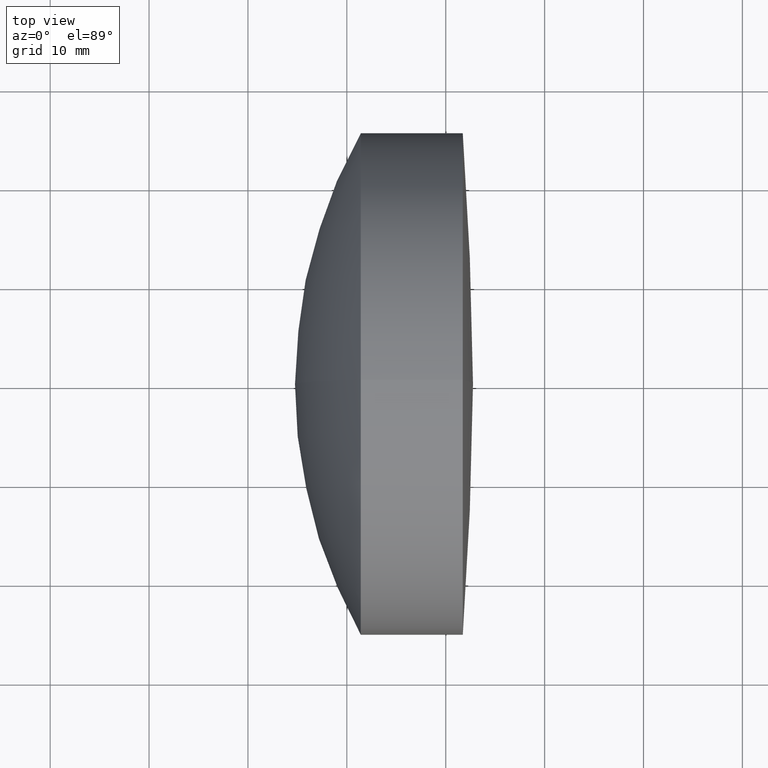
[diagram: clean part render]
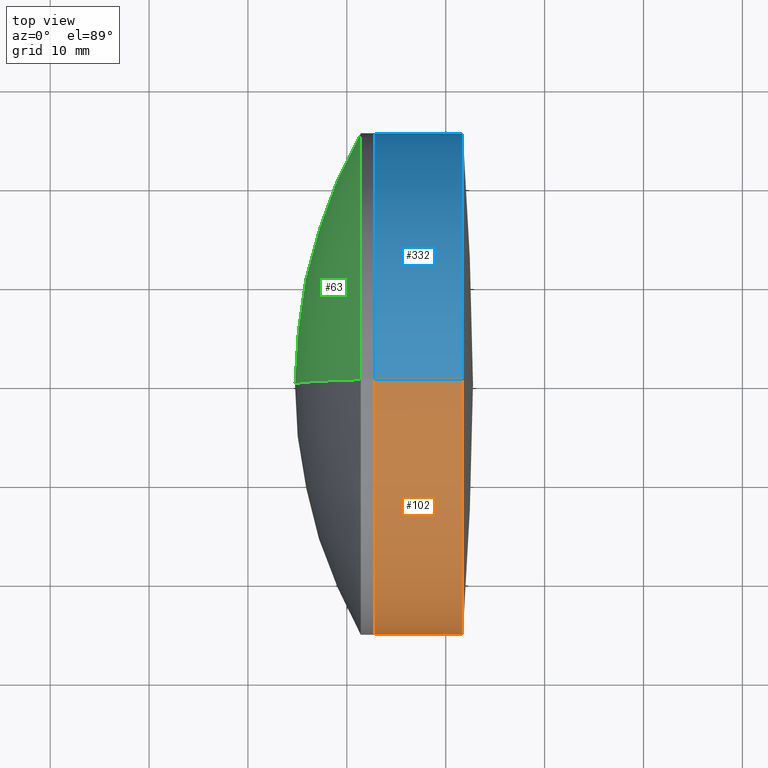
[diagram: same view with three faces highlighted in distinct colors, each labeled with its STEP entity id]
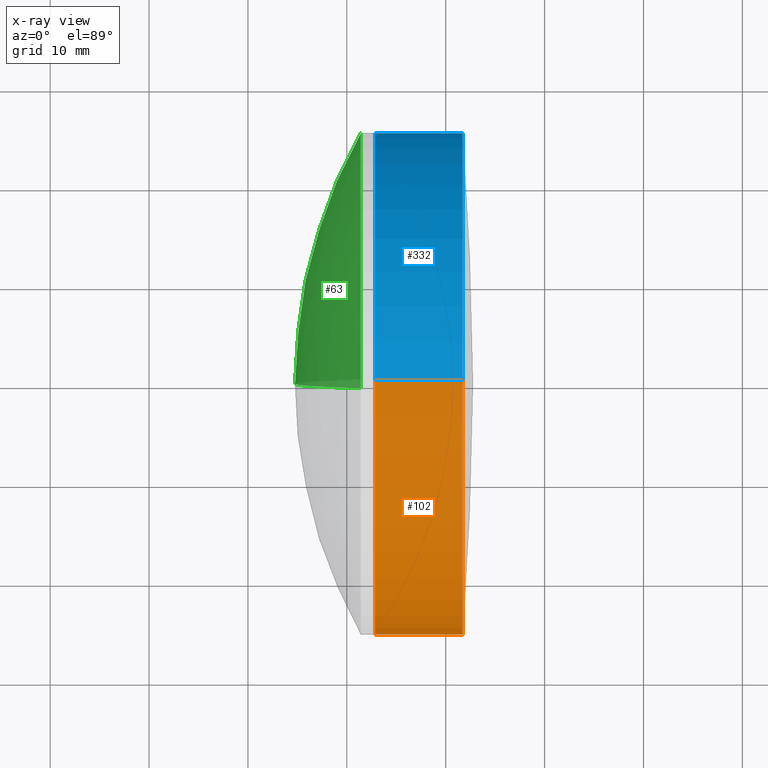
[diagram: x-ray of the same camera — body ghosted, the three highlighted faces saturated]
A machine part, top view with three faces highlighted in distinct colors.
The next image is the same camera in x-ray (body ghosted, the three faces saturated) — at least one of them is partly hidden behind the body in this view.
Their STEP definitions:

[orange] entity #102 — the highlighted cylindrical surface (partial cylindrical patch) has radius 25.4 mm, axis along (-1, -0, -0).
#1 = CARTESIAN_POINT ( 'NONE',  ( 531.7248018310176600, 0.0000000000000000000, 25.40000000000001300 ) ) ;
#8 = AXIS2_PLACEMENT_3D ( 'NONE', #223, #71, #172 ) ;
#12 = ORIENTED_EDGE ( 'NONE', *, *, #151, .F. ) ;
#13 = CIRCLE ( 'NONE', #317, 25.39999999999999100 ) ;
#15 = CARTESIAN_POINT ( 'NONE',  ( -0.5519199926577972300, 0.0000000000000000000, 25.40000000000000200 ) ) ;
#21 = VERTEX_POINT ( 'NONE', #113 ) ;
#30 = DIRECTION ( 'NONE',  ( 0.0000000000000000000, 0.0000000000000000000, 1.000000000000000000 ) ) ;
#32 = DIRECTION ( 'NONE',  ( -1.000000000000000000, -0.0000000000000000000, -0.0000000000000000000 ) ) ;
#36 = LINE ( 'NONE', #15, #114 ) ;
#44 = CARTESIAN_POINT ( 'NONE',  ( 522.8190420686033800, 0.0000000000000000000, 25.39999999999999100 ) ) ;
#57 = ORIENTED_EDGE ( 'NONE', *, *, #302, .T. ) ;
#68 = DIRECTION ( 'NONE',  ( -1.000000000000000000, -0.0000000000000000000, -0.0000000000000000000 ) ) ;
#71 = DIRECTION ( 'NONE',  ( -1.000000000000000000, -0.0000000000000000000, -0.0000000000000000000 ) ) ;
#79 = LINE ( 'NONE', #88, #277 ) ;
#88 = CARTESIAN_POINT ( 'NONE',  ( -0.5519199926577972300, 3.110602869834277300E-015, -25.40000000000000200 ) ) ;
#96 = ORIENTED_EDGE ( 'NONE', *, *, #321, .T. ) ;
#102 = ADVANCED_FACE ( 'NONE', ( #174 ), #334, .T. ) ;
#110 = EDGE_CURVE ( 'NONE', #21, #214, #13, .T. ) ;
#113 = CARTESIAN_POINT ( 'NONE',  ( 522.8190420686033800, 3.110602869834276100E-015, -25.40000000000000200 ) ) ;
#114 = VECTOR ( 'NONE', #342, 1000.000000000000000 ) ;
#133 = CARTESIAN_POINT ( 'NONE',  ( 522.8190420686033800, 0.0000000000000000000, 0.0000000000000000000 ) ) ;
#151 = EDGE_CURVE ( 'NONE', #171, #21, #79, .T. ) ;
#171 = VERTEX_POINT ( 'NONE', #287 ) ;
#172 = DIRECTION ( 'NONE',  ( 0.0000000000000000000, 0.0000000000000000000, 1.000000000000000000 ) ) ;
#174 = FACE_OUTER_BOUND ( 'NONE', #325, .T. ) ;
#214 = VERTEX_POINT ( 'NONE', #44 ) ;
#217 = DIRECTION ( 'NONE',  ( -1.000000000000000000, -0.0000000000000000000, -0.0000000000000000000 ) ) ;
#223 = CARTESIAN_POINT ( 'NONE',  ( 531.7248018310176600, 0.0000000000000000000, 0.0000000000000000000 ) ) ;
#226 = AXIS2_PLACEMENT_3D ( 'NONE', #286, #217, #30 ) ;
#252 = VERTEX_POINT ( 'NONE', #1 ) ;
#258 = ORIENTED_EDGE ( 'NONE', *, *, #110, .F. ) ;
#277 = VECTOR ( 'NONE', #32, 1000.000000000000000 ) ;
#283 = DIRECTION ( 'NONE',  ( 0.0000000000000000000, 0.0000000000000000000, 1.000000000000000000 ) ) ;
#286 = CARTESIAN_POINT ( 'NONE',  ( -0.5519199926577972300, 0.0000000000000000000, 0.0000000000000000000 ) ) ;
#287 = CARTESIAN_POINT ( 'NONE',  ( 531.7248018310176600, 3.110602869834278800E-015, -25.40000000000001300 ) ) ;
#302 = EDGE_CURVE ( 'NONE', #252, #214, #36, .T. ) ;
#317 = AXIS2_PLACEMENT_3D ( 'NONE', #133, #68, #283 ) ;
#321 = EDGE_CURVE ( 'NONE', #171, #252, #322, .T. ) ;
#322 = CIRCLE ( 'NONE', #8, 25.40000000000001300 ) ;
#325 = EDGE_LOOP ( 'NONE', ( #12, #96, #57, #258 ) ) ;
#334 = CYLINDRICAL_SURFACE ( 'NONE', #226, 25.40000000000000200 ) ;
#342 = DIRECTION ( 'NONE',  ( -1.000000000000000000, -0.0000000000000000000, -0.0000000000000000000 ) ) ;

[blue] entity #332 — the highlighted cylindrical surface (partial cylindrical patch) has radius 25.4 mm, axis along (-1, -0, -0).
#1 = CARTESIAN_POINT ( 'NONE',  ( 531.7248018310176600, 0.0000000000000000000, 25.40000000000001300 ) ) ;
#5 = CYLINDRICAL_SURFACE ( 'NONE', #62, 25.40000000000000200 ) ;
#15 = CARTESIAN_POINT ( 'NONE',  ( -0.5519199926577972300, 0.0000000000000000000, 25.40000000000000200 ) ) ;
#21 = VERTEX_POINT ( 'NONE', #113 ) ;
#26 = ORIENTED_EDGE ( 'NONE', *, *, #108, .F. ) ;
#32 = DIRECTION ( 'NONE',  ( -1.000000000000000000, -0.0000000000000000000, -0.0000000000000000000 ) ) ;
#33 = ORIENTED_EDGE ( 'NONE', *, *, #151, .T. ) ;
#36 = LINE ( 'NONE', #15, #114 ) ;
#40 = CIRCLE ( 'NONE', #116, 25.40000000000001300 ) ;
#44 = CARTESIAN_POINT ( 'NONE',  ( 522.8190420686033800, 0.0000000000000000000, 25.39999999999999100 ) ) ;
#62 = AXIS2_PLACEMENT_3D ( 'NONE', #153, #297, #186 ) ;
#78 = CARTESIAN_POINT ( 'NONE',  ( 522.8190420686033800, 0.0000000000000000000, 0.0000000000000000000 ) ) ;
#79 = LINE ( 'NONE', #88, #277 ) ;
#82 = DIRECTION ( 'NONE',  ( -1.000000000000000000, -0.0000000000000000000, -0.0000000000000000000 ) ) ;
#86 = EDGE_CURVE ( 'NONE', #252, #171, #40, .T. ) ;
#87 = FACE_OUTER_BOUND ( 'NONE', #176, .T. ) ;
#88 = CARTESIAN_POINT ( 'NONE',  ( -0.5519199926577972300, 3.110602869834277300E-015, -25.40000000000000200 ) ) ;
#107 = CARTESIAN_POINT ( 'NONE',  ( 531.7248018310176600, 0.0000000000000000000, 0.0000000000000000000 ) ) ;
#108 = EDGE_CURVE ( 'NONE', #214, #21, #195, .T. ) ;
#113 = CARTESIAN_POINT ( 'NONE',  ( 522.8190420686033800, 3.110602869834276100E-015, -25.40000000000000200 ) ) ;
#114 = VECTOR ( 'NONE', #342, 1000.000000000000000 ) ;
#116 = AXIS2_PLACEMENT_3D ( 'NONE', #107, #211, #316 ) ;
#151 = EDGE_CURVE ( 'NONE', #171, #21, #79, .T. ) ;
#153 = CARTESIAN_POINT ( 'NONE',  ( -0.5519199926577972300, 0.0000000000000000000, 0.0000000000000000000 ) ) ;
#158 = ORIENTED_EDGE ( 'NONE', *, *, #86, .T. ) ;
#171 = VERTEX_POINT ( 'NONE', #287 ) ;
#176 = EDGE_LOOP ( 'NONE', ( #158, #33, #26, #309 ) ) ;
#186 = DIRECTION ( 'NONE',  ( 0.0000000000000000000, 0.0000000000000000000, 1.000000000000000000 ) ) ;
#193 = AXIS2_PLACEMENT_3D ( 'NONE', #78, #82, #276 ) ;
#195 = CIRCLE ( 'NONE', #193, 25.39999999999999100 ) ;
#211 = DIRECTION ( 'NONE',  ( -1.000000000000000000, -0.0000000000000000000, -0.0000000000000000000 ) ) ;
#214 = VERTEX_POINT ( 'NONE', #44 ) ;
#252 = VERTEX_POINT ( 'NONE', #1 ) ;
#276 = DIRECTION ( 'NONE',  ( 0.0000000000000000000, 0.0000000000000000000, 1.000000000000000000 ) ) ;
#277 = VECTOR ( 'NONE', #32, 1000.000000000000000 ) ;
#287 = CARTESIAN_POINT ( 'NONE',  ( 531.7248018310176600, 3.110602869834278800E-015, -25.40000000000001300 ) ) ;
#297 = DIRECTION ( 'NONE',  ( -1.000000000000000000, -0.0000000000000000000, -0.0000000000000000000 ) ) ;
#302 = EDGE_CURVE ( 'NONE', #252, #214, #36, .T. ) ;
#309 = ORIENTED_EDGE ( 'NONE', *, *, #302, .F. ) ;
#316 = DIRECTION ( 'NONE',  ( 0.0000000000000000000, 0.0000000000000000000, 1.000000000000000000 ) ) ;
#332 = ADVANCED_FACE ( 'NONE', ( #87 ), #5, .T. ) ;
#342 = DIRECTION ( 'NONE',  ( -1.000000000000000000, -0.0000000000000000000, -0.0000000000000000000 ) ) ;

[green] entity #63 — the highlighted spherical surface has radius 51.8 mm.
#14 = ORIENTED_EDGE ( 'NONE', *, *, #56, .T. ) ;
#18 = EDGE_LOOP ( 'NONE', ( #131, #14, #333 ) ) ;
#23 = DIRECTION ( 'NONE',  ( 0.0000000000000000000, 0.0000000000000000000, 1.000000000000000000 ) ) ;
#25 = CIRCLE ( 'NONE', #28, 25.39999999999999100 ) ;
#28 = AXIS2_PLACEMENT_3D ( 'NONE', #95, #233, #23 ) ;
#56 = EDGE_CURVE ( 'NONE', #115, #149, #198, .T. ) ;
#63 = ADVANCED_FACE ( 'NONE', ( #335 ), #305, .T. ) ;
#75 = CARTESIAN_POINT ( 'NONE',  ( 566.5584365089565600, 0.0000000000000000000, -7.345239820020665200E-015 ) ) ;
#77 = AXIS2_PLACEMENT_3D ( 'NONE', #312, #128, #281 ) ;
#95 = CARTESIAN_POINT ( 'NONE',  ( 521.4133371071388900, 0.0000000000000000000, 0.0000000000000000000 ) ) ;
#97 = DIRECTION ( 'NONE',  ( 0.0000000000000000000, 1.000000000000000000, 0.0000000000000000000 ) ) ;
#109 = CARTESIAN_POINT ( 'NONE',  ( 514.7584365089566100, 0.0000000000000000000, -4.173404610229022400E-015 ) ) ;
#115 = VERTEX_POINT ( 'NONE', #347 ) ;
#119 = CIRCLE ( 'NONE', #77, 51.79999999999996900 ) ;
#128 = DIRECTION ( 'NONE',  ( 0.0000000000000000000, -1.000000000000000000, 0.0000000000000000000 ) ) ;
#131 = ORIENTED_EDGE ( 'NONE', *, *, #238, .T. ) ;
#147 = DIRECTION ( 'NONE',  ( 0.0000000000000000000, 0.0000000000000000000, 1.000000000000000000 ) ) ;
#149 = VERTEX_POINT ( 'NONE', #109 ) ;
#180 = CARTESIAN_POINT ( 'NONE',  ( 566.5584365089565600, 0.0000000000000000000, -7.345239820020665200E-015 ) ) ;
#198 = CIRCLE ( 'NONE', #271, 51.79999999999996900 ) ;
#219 = CARTESIAN_POINT ( 'NONE',  ( 521.4133371071388900, 0.0000000000000000000, 25.39999999999999100 ) ) ;
#233 = DIRECTION ( 'NONE',  ( -1.000000000000000000, -0.0000000000000000000, -0.0000000000000000000 ) ) ;
#238 = EDGE_CURVE ( 'NONE', #282, #115, #25, .T. ) ;
#239 = DIRECTION ( 'NONE',  ( 0.0000000000000000000, -1.224646799147353200E-016, 1.000000000000000000 ) ) ;
#271 = AXIS2_PLACEMENT_3D ( 'NONE', #75, #289, #239 ) ;
#281 = DIRECTION ( 'NONE',  ( 0.0000000000000000000, 0.0000000000000000000, -1.000000000000000000 ) ) ;
#282 = VERTEX_POINT ( 'NONE', #219 ) ;
#289 = DIRECTION ( 'NONE',  ( -0.0000000000000000000, 1.000000000000000000, 1.224646799147353200E-016 ) ) ;
#305 = SPHERICAL_SURFACE ( 'NONE', #328, 51.79999999999996900 ) ;
#306 = EDGE_CURVE ( 'NONE', #282, #149, #119, .T. ) ;
#312 = CARTESIAN_POINT ( 'NONE',  ( 566.5584365089565600, 0.0000000000000000000, -7.345239820020665200E-015 ) ) ;
#328 = AXIS2_PLACEMENT_3D ( 'NONE', #180, #97, #147 ) ;
#333 = ORIENTED_EDGE ( 'NONE', *, *, #306, .F. ) ;
#335 = FACE_OUTER_BOUND ( 'NONE', #18, .T. ) ;
#347 = CARTESIAN_POINT ( 'NONE',  ( 521.4133371071388900, 3.110602869834276500E-015, -25.39999999999999900 ) ) ;